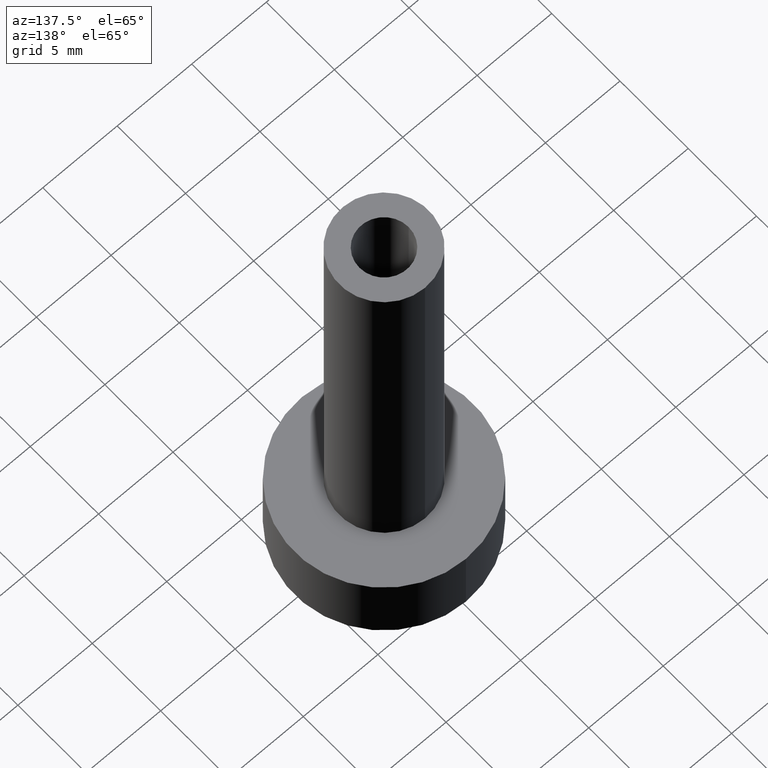
[diagram: clean part render]
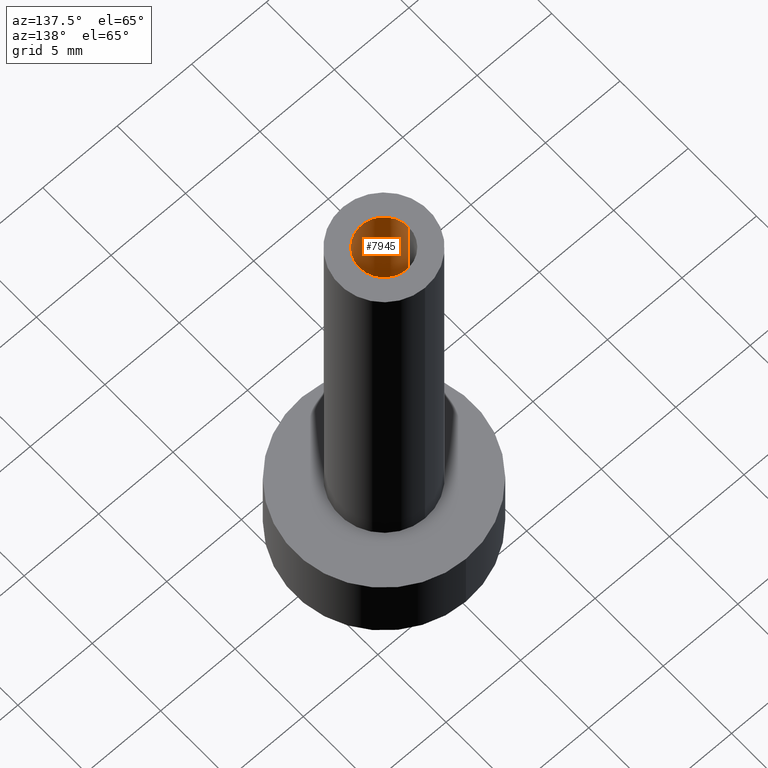
[diagram: same view with one face highlighted and labeled with its STEP entity id]
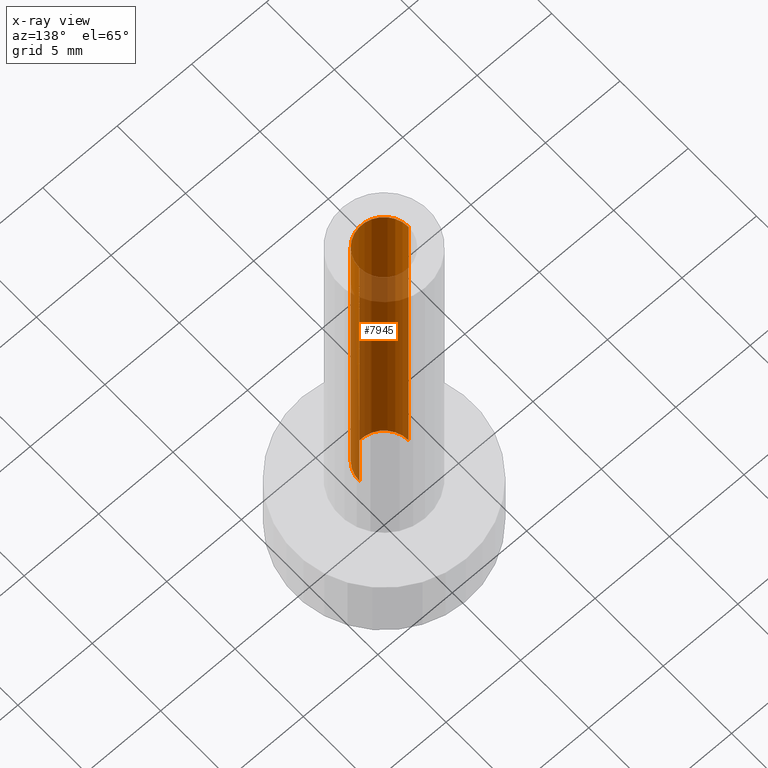
[diagram: x-ray of the same camera — body ghosted, the highlighted face saturated]
A machine part, auxiliary view. The second image highlights one B-rep face of the part: STEP entity #7945.
The next image is the same camera in x-ray: the body ghosted, the highlighted face saturated — about 72% of this face is hidden behind the body in this view.
In plain terms, the highlighted cylindrical surface (edge-blend (fillet) strip) has radius 1.65 mm, axis along (-0, -0, 1).
Its self-contained STEP definition (entity closure, byte-faithful):
#49 = CARTESIAN_POINT ( 'NONE',  ( 1.649999999999995200, -1.974194513242174800E-013, 25.57966008460881100 ) ) ;
#56 = EDGE_CURVE ( 'NONE', #11429, #7321, #3998, .T. ) ;
#87 = LINE ( 'NONE', #1256, #6739 ) ;
#108 = EDGE_CURVE ( 'NONE', #9196, #767, #5945, .T. ) ;
#112 = VERTEX_POINT ( 'NONE', #3204 ) ;
#140 = CARTESIAN_POINT ( 'NONE',  ( 1.649999999999995200, -0.006834618660870497000, 20.70278219267596100 ) ) ;
#180 = EDGE_CURVE ( 'NONE', #9532, #9961, #4290, .T. ) ;
#215 = VECTOR ( 'NONE', #11399, 1000.000000000000000 ) ;
#304 = ORIENTED_EDGE ( 'NONE', *, *, #7689, .F. ) ;
#306 = CARTESIAN_POINT ( 'NONE',  ( 1.649999999999996600, -0.01377649641827538600, 27.24789014515155500 ) ) ;
#324 = VERTEX_POINT ( 'NONE', #4541 ) ;
#327 = CARTESIAN_POINT ( 'NONE',  ( 1.649999999999995200, -1.795680202025962800E-013, 22.62096646133800300 ) ) ;
#351 = DIRECTION ( 'NONE',  ( -0.0000000000000000000, -0.0000000000000000000, 1.000000000000000000 ) ) ;
#372 = CARTESIAN_POINT ( 'NONE',  ( 1.649999999999995200, 5.268150651319691000E-012, 19.89648745500781900 ) ) ;
#375 = ORIENTED_EDGE ( 'NONE', *, *, #790, .F. ) ;
#393 = EDGE_CURVE ( 'NONE', #4023, #5433, #11601, .T. ) ;
#422 = DIRECTION ( 'NONE',  ( -0.0000000000000000000, -0.0000000000000000000, 1.000000000000000000 ) ) ;
#482 = B_SPLINE_CURVE_WITH_KNOTS ( 'NONE', 3,
 ( #8806, #6019, #6976, #1313 ),
 .UNSPECIFIED., .F., .F.,
 ( 4, 4 ),
 ( 0.0000000000000000000, 9.910549346511510500E-005 ),
 .UNSPECIFIED. ) ;
#520 = DIRECTION ( 'NONE',  ( -0.0000000000000000000, -0.0000000000000000000, 1.000000000000000000 ) ) ;
#531 = CARTESIAN_POINT ( 'NONE',  ( 1.649999999999995200, 5.268150651319691000E-012, 19.89648745500781900 ) ) ;
#555 = DIRECTION ( 'NONE',  ( -0.0000000000000000000, -0.0000000000000000000, 1.000000000000000000 ) ) ;
#626 = VERTEX_POINT ( 'NONE', #9906 ) ;
#727 = VERTEX_POINT ( 'NONE', #11142 ) ;
#760 = B_SPLINE_CURVE_WITH_KNOTS ( 'NONE', 3,
 ( #11669, #3125, #6983, #327 ),
 .UNSPECIFIED., .F., .F.,
 ( 4, 4 ),
 ( 0.0000000000000000000, 8.345817743807363300E-005 ),
 .UNSPECIFIED. ) ;
#767 = VERTEX_POINT ( 'NONE', #5905 ) ;
#790 = EDGE_CURVE ( 'NONE', #7985, #4956, #2448, .T. ) ;
#847 = CARTESIAN_POINT ( 'NONE',  ( 1.649999999999993700, -0.01337708434378576100, 25.54919319790538200 ) ) ;
#854 = LINE ( 'NONE', #11877, #5561 ) ;
#860 = CARTESIAN_POINT ( 'NONE',  ( 1.649999999999995200, -0.007168028882069886600, 19.75330108053930500 ) ) ;
#881 = LINE ( 'NONE', #8865, #6491 ) ;
#883 = LINE ( 'NONE', #8928, #2779 ) ;
#885 = CARTESIAN_POINT ( 'NONE',  ( 1.649999999999996600, -3.306546357697853300E-015, 32.00000000000000000 ) ) ;
#903 = CARTESIAN_POINT ( 'NONE',  ( 1.649972729147662000, -0.009509848553077097600, 19.78193476246715600 ) ) ;
#978 = ORIENTED_EDGE ( 'NONE', *, *, #7627, .F. ) ;
#1030 = LINE ( 'NONE', #9035, #10791 ) ;
#1036 = ORIENTED_EDGE ( 'NONE', *, *, #8727, .F. ) ;
#1155 = CARTESIAN_POINT ( 'NONE',  ( 1.649874471932466300, -0.02035256410257170500, 29.75620868389423600 ) ) ;
#1172 = VERTEX_POINT ( 'NONE', #7448 ) ;
#1206 = CARTESIAN_POINT ( 'NONE',  ( 1.649999999999995200, -7.162893381950415300E-015, 26.14346955128204900 ) ) ;
#1207 = VERTEX_POINT ( 'NONE', #8218 ) ;
#1219 = CARTESIAN_POINT ( 'NONE',  ( 1.649999999999995200, -9.166859087305226900E-015, 32.00000000000000000 ) ) ;
#1226 = EDGE_CURVE ( 'NONE', #3746, #12029, #9428, .T. ) ;
#1253 = LINE ( 'NONE', #7222, #11026 ) ;
#1256 = CARTESIAN_POINT ( 'NONE',  ( 1.649999999999995200, -9.166859087305125900E-015, 32.00000000000000000 ) ) ;
#1269 = VERTEX_POINT ( 'NONE', #885 ) ;
#1281 = CARTESIAN_POINT ( 'NONE',  ( 1.649968618878430800, -0.01017628205128855700, 20.75735426682692600 ) ) ;
#1307 = CARTESIAN_POINT ( 'NONE',  ( 1.649999999999995200, -2.020597095675133500E-015, 27.82876245943963400 ) ) ;
#1313 = CARTESIAN_POINT ( 'NONE',  ( 1.649999999999995200, -1.947197455630812100E-013, 29.24312162307036200 ) ) ;
#1335 = CARTESIAN_POINT ( 'NONE',  ( -1.649999999999996800, -3.104479635838540600E-015, 32.00000000000000000 ) ) ;
#1359 = ORIENTED_EDGE ( 'NONE', *, *, #4140, .F. ) ;
#1393 = VECTOR ( 'NONE', #4815, 1000.000000000000000 ) ;
#1394 = DIRECTION ( 'NONE',  ( -0.0000000000000000000, -0.0000000000000000000, 1.000000000000000000 ) ) ;
#1437 = CARTESIAN_POINT ( 'NONE',  ( 1.649881399317205700, -0.01979099774790418100, 27.89187417628213700 ) ) ;
#1469 = CARTESIAN_POINT ( 'NONE',  ( 1.649999999999995200, -6.953525881096183700E-015, 24.18962339743589900 ) ) ;
#1473 = CARTESIAN_POINT ( 'NONE',  ( 1.649874471932466300, -0.02035256410257140300, 27.31453700921474600 ) ) ;
#1509 = DIRECTION ( 'NONE',  ( -0.0000000000000000000, -0.0000000000000000000, 1.000000000000000000 ) ) ;
#1517 = VECTOR ( 'NONE', #422, 1000.000000000000000 ) ;
#1518 = CARTESIAN_POINT ( 'NONE',  ( 1.649999999999995200, -4.287045504290827600E-015, 29.04991630559348800 ) ) ;
#1519 = ORIENTED_EDGE ( 'NONE', *, *, #4967, .F. ) ;
#1525 = CARTESIAN_POINT ( 'NONE',  ( 1.649999999999995200, -0.01429263875368419800, 29.68102768341397300 ) ) ;
#1570 = ORIENTED_EDGE ( 'NONE', *, *, #8089, .F. ) ;
#1625 = ORIENTED_EDGE ( 'NONE', *, *, #9265, .F. ) ;
#1639 = DIRECTION ( 'NONE',  ( -0.0000000000000000000, -0.0000000000000000000, 1.000000000000000000 ) ) ;
#1642 = EDGE_CURVE ( 'NONE', #5367, #2298, #10292, .T. ) ;
#1651 = CARTESIAN_POINT ( 'NONE',  ( 1.649888061894949200, -0.01925089789177153500, 29.79444033379345000 ) ) ;
#1710 = CARTESIAN_POINT ( 'NONE',  ( 1.649999999999995200, -9.286497659221951400E-015, 20.24122596153846100 ) ) ;
#1729 = EDGE_CURVE ( 'NONE', #2207, #5078, #8895, .T. ) ;
#1730 = ORIENTED_EDGE ( 'NONE', *, *, #11137, .F. ) ;
#1733 = VECTOR ( 'NONE', #5971, 1000.000000000000000 ) ;
#1788 = CARTESIAN_POINT ( 'NONE',  ( 1.649999999999995200, -1.974194513242174800E-013, 25.57966008460881100 ) ) ;
#1823 = LINE ( 'NONE', #6649, #1393 ) ;
#1825 = B_SPLINE_CURVE_WITH_KNOTS ( 'NONE', 3,
 ( #10725, #306, #2142, #10442 ),
 .UNSPECIFIED., .F., .F.,
 ( 4, 4 ),
 ( 0.0004585329357487526700, 0.0005566951640795408200 ),
 .UNSPECIFIED. ) ;
#1850 = CARTESIAN_POINT ( 'NONE',  ( 1.649999999999995200, -6.563454287242769200E-015, 20.99427083333333500 ) ) ;
#1868 = EDGE_CURVE ( 'NONE', #5877, #8810, #12013, .T. ) ;
#1881 = VECTOR ( 'NONE', #10597, 1000.000000000000000 ) ;
#1889 = LINE ( 'NONE', #2677, #3689 ) ;
#1910 = CARTESIAN_POINT ( 'NONE',  ( 1.649968618878430800, -0.01017628205128844200, 19.81048302283653900 ) ) ;
#1955 = CARTESIAN_POINT ( 'NONE',  ( 1.649999999999996600, -0.01377649641826680600, 29.07962091438233200 ) ) ;
#1987 = VERTEX_POINT ( 'NONE', #7076 ) ;
#1998 = LINE ( 'NONE', #5295, #11764 ) ;
#1999 = CARTESIAN_POINT ( 'NONE',  ( 1.649968618878430800, -0.01017628205128877400, 22.53820362580128000 ) ) ;
#2016 = ORIENTED_EDGE ( 'NONE', *, *, #180, .F. ) ;
#2022 = VECTOR ( 'NONE', #7216, 1000.000000000000000 ) ;
#2058 = VERTEX_POINT ( 'NONE', #1850 ) ;
#2104 = LINE ( 'NONE', #5978, #9992 ) ;
#2142 = CARTESIAN_POINT ( 'NONE',  ( 1.649881399317200800, -0.01979099774790403500, 27.28129725320521700 ) ) ;
#2150 = VERTEX_POINT ( 'NONE', #9651 ) ;
#2164 = VECTOR ( 'NONE', #1509, 1000.000000000000000 ) ;
#2170 = LINE ( 'NONE', #10630, #1881 ) ;
#2171 = ORIENTED_EDGE ( 'NONE', *, *, #3329, .F. ) ;
#2180 = CARTESIAN_POINT ( 'NONE',  ( 1.649999999999995200, -6.423875953339947600E-015, 20.31245993589743300 ) ) ;
#2196 = CARTESIAN_POINT ( 'NONE',  ( 1.649999999999995200, -3.818212767985572400E-015, 28.42502248511685900 ) ) ;
#2207 = VERTEX_POINT ( 'NONE', #4769 ) ;
#2217 = VERTEX_POINT ( 'NONE', #7955 ) ;
#2232 = CIRCLE ( 'NONE', #5386, 1.649999999999996600 ) ;
#2296 = CARTESIAN_POINT ( 'NONE',  ( 1.649968618878430800, -0.01017628205128844200, 19.81048302283653900 ) ) ;
#2298 = VERTEX_POINT ( 'NONE', #6834 ) ;
#2328 = EDGE_CURVE ( 'NONE', #4375, #1269, #2232, .T. ) ;
#2330 = CARTESIAN_POINT ( 'NONE',  ( 1.649999999999995200, -1.956188710365916500E-013, 28.02196777691651200 ) ) ;
#2340 = CARTESIAN_POINT ( 'NONE',  ( 1.649999999999995200, -6.853827071165598900E-015, 23.44675480769230800 ) ) ;
#2361 = EDGE_CURVE ( 'NONE', #4635, #5367, #5670, .T. ) ;
#2370 = VECTOR ( 'NONE', #3993, 1000.000000000000000 ) ;
#2401 = CARTESIAN_POINT ( 'NONE',  ( 1.649999999999995200, -3.306546357697853300E-015, 32.00000000000000000 ) ) ;
#2448 = LINE ( 'NONE', #9759, #9388 ) ;
#2460 = EDGE_CURVE ( 'NONE', #2058, #1207, #2170, .T. ) ;
#2493 = LINE ( 'NONE', #4117, #2764 ) ;
#2517 = CARTESIAN_POINT ( 'NONE',  ( 1.649999999999993900, -3.460658985125850800E-015, 29.64617633127070900 ) ) ;
#2587 = CARTESIAN_POINT ( 'NONE',  ( 1.649999999999995200, -3.306546357697853300E-015, 32.00000000000000000 ) ) ;
#2636 = ORIENTED_EDGE ( 'NONE', *, *, #2328, .T. ) ;
#2677 = CARTESIAN_POINT ( 'NONE',  ( 1.649999999999995200, -3.306546357697853300E-015, 32.00000000000000000 ) ) ;
#2682 = EDGE_CURVE ( 'NONE', #9209, #10911, #4205, .T. ) ;
#2721 = EDGE_CURVE ( 'NONE', #1987, #4023, #1823, .T. ) ;
#2741 = ORIENTED_EDGE ( 'NONE', *, *, #3144, .F. ) ;
#2764 = VECTOR ( 'NONE', #10746, 1000.000000000000000 ) ;
#2779 = VECTOR ( 'NONE', #520, 1000.000000000000000 ) ;
#2783 = ORIENTED_EDGE ( 'NONE', *, *, #10431, .F. ) ;
#2991 = EDGE_CURVE ( 'NONE', #5078, #6320, #11882, .T. ) ;
#3020 = CARTESIAN_POINT ( 'NONE',  ( 1.649999999999995200, -9.438538344365947600E-015, 19.03024839743589800 ) ) ;
#3061 = CARTESIAN_POINT ( 'NONE',  ( 1.649880474257335600, -0.01986598744696083100, 27.34796265203396000 ) ) ;
#3087 = ORIENTED_EDGE ( 'NONE', *, *, #8574, .F. ) ;
#3125 = CARTESIAN_POINT ( 'NONE',  ( 1.649972627052297900, -0.009526402157410483700, 22.56609377124715400 ) ) ;
#3144 = EDGE_CURVE ( 'NONE', #4663, #1172, #8747, .T. ) ;
#3146 = CARTESIAN_POINT ( 'NONE',  ( 1.649999999999995200, -6.740419674869557200E-015, 22.09330929487179100 ) ) ;
#3160 = CARTESIAN_POINT ( 'NONE',  ( 1.649999999999995200, -3.306546357697853300E-015, 32.00000000000000000 ) ) ;
#3190 = EDGE_CURVE ( 'NONE', #9961, #12100, #5520, .T. ) ;
#3204 = CARTESIAN_POINT ( 'NONE',  ( 1.649999999999995200, -6.643213335187236400E-015, 21.69643429487179300 ) ) ;
#3267 = CARTESIAN_POINT ( 'NONE',  ( 1.649968618878430800, -0.01017628205128844200, 19.81048302283653900 ) ) ;
#3276 = CARTESIAN_POINT ( 'NONE',  ( 1.649999999999996600, -1.803920773811563600E-013, 20.84011710236364200 ) ) ;
#3329 = EDGE_CURVE ( 'NONE', #5163, #11417, #11147, .T. ) ;
#3347 = DIRECTION ( 'NONE',  ( -0.0000000000000000000, -0.0000000000000000000, 1.000000000000000000 ) ) ;
#3351 = CARTESIAN_POINT ( 'NONE',  ( 1.649874471932466300, -0.02035256410257155200, 28.53505483774038300 ) ) ;
#3383 = CARTESIAN_POINT ( 'NONE',  ( 1.649999999999995200, -7.013345167054537300E-015, 24.92231570512820600 ) ) ;
#3396 = LINE ( 'NONE', #10961, #8102 ) ;
#3439 = VERTEX_POINT ( 'NONE', #12000 ) ;
#3519 = CARTESIAN_POINT ( 'NONE',  ( 1.649885263884359300, -0.01947771777650582000, 29.71850350367906300 ) ) ;
#3537 = CARTESIAN_POINT ( 'NONE',  ( 1.649999999999993700, -3.306546357697853300E-015, 6.999999999999999100 ) ) ;
#3545 = DIRECTION ( 'NONE',  ( -0.0000000000000000000, -0.0000000000000000000, 1.000000000000000000 ) ) ;
#3550 = CARTESIAN_POINT ( 'NONE',  ( 1.649999999999995200, -8.866516422389248500E-015, 32.00000000000000000 ) ) ;
#3552 = CARTESIAN_POINT ( 'NONE',  ( 1.649881399317195700, -0.01979099774790379600, 25.44956648397444400 ) ) ;
#3606 = B_SPLINE_CURVE_WITH_KNOTS ( 'NONE', 3,
 ( #4562, #6505, #847, #1788 ),
 .UNSPECIFIED., .F., .F.,
 ( 4, 4 ),
 ( 0.0000000000000000000, 9.910549346510903300E-005 ),
 .UNSPECIFIED. ) ;
#3649 = CARTESIAN_POINT ( 'NONE',  ( 1.649999999999996600, -3.542291785417484000E-015, 22.45752495321338000 ) ) ;
#3686 = CARTESIAN_POINT ( 'NONE',  ( 0.0000000000000000000, -3.306546357697853300E-015, 32.00000000000000000 ) ) ;
#3689 = VECTOR ( 'NONE', #9286, 1000.000000000000000 ) ;
#3691 = VECTOR ( 'NONE', #11402, 1000.000000000000000 ) ;
#3708 = ORIENTED_EDGE ( 'NONE', *, *, #8286, .F. ) ;
#3746 = VERTEX_POINT ( 'NONE', #6599 ) ;
#3755 = ORIENTED_EDGE ( 'NONE', *, *, #5936, .F. ) ;
#3784 = CARTESIAN_POINT ( 'NONE',  ( 1.649999999999995200, -9.166859087305125900E-015, 21.22832532051281600 ) ) ;
#3793 = CARTESIAN_POINT ( 'NONE',  ( 1.649999999999996600, -3.542291785417484000E-015, 22.45752495321338000 ) ) ;
#3831 = CARTESIAN_POINT ( 'NONE',  ( 1.649999999999993900, -0.006834618660871230800, 22.48363155165030800 ) ) ;
#3859 = CARTESIAN_POINT ( 'NONE',  ( 1.649881399317200800, -0.01979099774790395500, 29.11302802243599100 ) ) ;
#3863 = EDGE_CURVE ( 'NONE', #2298, #3953, #9504, .T. ) ;
#3906 = ORIENTED_EDGE ( 'NONE', *, *, #1868, .F. ) ;
#3922 = ORIENTED_EDGE ( 'NONE', *, *, #4465, .F. ) ;
#3953 = VERTEX_POINT ( 'NONE', #2340 ) ;
#3959 = ORIENTED_EDGE ( 'NONE', *, *, #7267, .F. ) ;
#3993 = DIRECTION ( 'NONE',  ( -0.0000000000000000000, -0.0000000000000000000, 1.000000000000000000 ) ) ;
#3998 = LINE ( 'NONE', #8592, #2370 ) ;
#4008 = ORIENTED_EDGE ( 'NONE', *, *, #9115, .F. ) ;
#4023 = VERTEX_POINT ( 'NONE', #1518 ) ;
#4049 = VECTOR ( 'NONE', #5823, 1000.000000000000000 ) ;
#4093 = CARTESIAN_POINT ( 'NONE',  ( 1.649999999999995200, -3.306546357697853300E-015, 32.00000000000000000 ) ) ;
#4117 = CARTESIAN_POINT ( 'NONE',  ( 1.649999999999995200, -3.306546357697853300E-015, 32.00000000000000000 ) ) ;
#4140 = EDGE_CURVE ( 'NONE', #11423, #5877, #8673, .T. ) ;
#4174 = ORIENTED_EDGE ( 'NONE', *, *, #393, .F. ) ;
#4205 = LINE ( 'NONE', #10350, #9236 ) ;
#4223 = EDGE_CURVE ( 'NONE', #12100, #2207, #1889, .T. ) ;
#4272 = EDGE_CURVE ( 'NONE', #4956, #4663, #6916, .T. ) ;
#4290 = LINE ( 'NONE', #3160, #5590 ) ;
#4303 = CARTESIAN_POINT ( 'NONE',  ( 1.649999999999995200, -5.194270730359386600E-015, 28.64682120887044900 ) ) ;
#4340 = B_SPLINE_CURVE_WITH_KNOTS ( 'NONE', 3,
 ( #8719, #7737, #8675, #9645 ),
 .UNSPECIFIED., .F., .F.,
 ( 4, 4 ),
 ( 0.0000000000000000000, 9.910549346511258400E-005 ),
 .UNSPECIFIED. ) ;
#4375 = VERTEX_POINT ( 'NONE', #1335 ) ;
#4439 = EDGE_CURVE ( 'NONE', #727, #3746, #760, .T. ) ;
#4465 = EDGE_CURVE ( 'NONE', #1172, #8499, #881, .T. ) ;
#4486 = ORIENTED_EDGE ( 'NONE', *, *, #5600, .F. ) ;
#4541 = CARTESIAN_POINT ( 'NONE',  ( 1.649874471932466300, -0.02035256410257155200, 28.53505483774038300 ) ) ;
#4562 = CARTESIAN_POINT ( 'NONE',  ( 1.649874471932466300, -0.02035256410257118100, 25.48280623998397200 ) ) ;
#4590 = VERTEX_POINT ( 'NONE', #2196 ) ;
#4635 = VERTEX_POINT ( 'NONE', #7258 ) ;
#4644 = EDGE_CURVE ( 'NONE', #8001, #9532, #10199, .T. ) ;
#4663 = VERTEX_POINT ( 'NONE', #1469 ) ;
#4682 = LINE ( 'NONE', #2401, #11060 ) ;
#4687 = VECTOR ( 'NONE', #12193, 1000.000000000000000 ) ;
#4769 = CARTESIAN_POINT ( 'NONE',  ( 1.649999999999995200, -4.207742044604143700E-015, 19.72572928078200500 ) ) ;
#4779 = ORIENTED_EDGE ( 'NONE', *, *, #1642, .F. ) ;
#4815 = DIRECTION ( 'NONE',  ( -0.0000000000000000000, -0.0000000000000000000, 1.000000000000000000 ) ) ;
#4891 = VERTEX_POINT ( 'NONE', #10669 ) ;
#4903 = AXIS2_PLACEMENT_3D ( 'NONE', #9193, #3545, #5378 ) ;
#4925 = ORIENTED_EDGE ( 'NONE', *, *, #10223, .F. ) ;
#4956 = VERTEX_POINT ( 'NONE', #7142 ) ;
#4957 = ORIENTED_EDGE ( 'NONE', *, *, #3190, .F. ) ;
#4965 = CARTESIAN_POINT ( 'NONE',  ( 1.649999999999995200, -3.765273208782178600E-015, 20.67667559423902500 ) ) ;
#4967 = EDGE_CURVE ( 'NONE', #6320, #9302, #6762, .T. ) ;
#4968 = VERTEX_POINT ( 'NONE', #1473 ) ;
#5078 = VERTEX_POINT ( 'NONE', #2296 ) ;
#5117 = ORIENTED_EDGE ( 'NONE', *, *, #4644, .F. ) ;
#5144 = CARTESIAN_POINT ( 'NONE',  ( 1.649999999999995200, -3.306546357697853300E-015, 32.00000000000000000 ) ) ;
#5157 = CARTESIAN_POINT ( 'NONE',  ( 1.649999999999995200, -6.781545433965924000E-015, 22.77512019230768900 ) ) ;
#5163 = VERTEX_POINT ( 'NONE', #8754 ) ;
#5295 = CARTESIAN_POINT ( 'NONE',  ( 1.649999999999995200, -9.166859087305129100E-015, 32.00000000000000000 ) ) ;
#5296 = CARTESIAN_POINT ( 'NONE',  ( 1.649999999999995200, -1.947197455630812100E-013, 29.24312162307036200 ) ) ;
#5299 = CARTESIAN_POINT ( 'NONE',  ( 1.649999999999995200, -1.338841452253828500E-015, 25.38645476713193700 ) ) ;
#5301 = CARTESIAN_POINT ( 'NONE',  ( 1.649999999999995200, -8.948767940581975900E-015, 32.00000000000000000 ) ) ;
#5313 = ORIENTED_EDGE ( 'NONE', *, *, #3863, .F. ) ;
#5319 = ORIENTED_EDGE ( 'NONE', *, *, #12147, .F. ) ;
#5343 = CARTESIAN_POINT ( 'NONE',  ( 1.649999999999996600, -0.01377649641827423200, 25.41615937592077800 ) ) ;
#5367 = VERTEX_POINT ( 'NONE', #6742 ) ;
#5378 = DIRECTION ( 'NONE',  ( 1.000000000000000000, 0.0000000000000000000, 0.0000000000000000000 ) ) ;
#5386 = AXIS2_PLACEMENT_3D ( 'NONE', #9074, #3347, #6264 ) ;
#5388 = CARTESIAN_POINT ( 'NONE',  ( 1.649874471932466300, -0.02035256410257118100, 25.48280623998397200 ) ) ;
#5405 = AXIS2_PLACEMENT_3D ( 'NONE', #3686, #5409, #5801 ) ;
#5409 = DIRECTION ( 'NONE',  ( -0.0000000000000000000, -0.0000000000000000000, 1.000000000000000000 ) ) ;
#5429 = LINE ( 'NONE', #11136, #11952 ) ;
#5431 = CARTESIAN_POINT ( 'NONE',  ( 1.649999999999995200, -3.818212767985572400E-015, 28.42502248511685900 ) ) ;
#5433 = VERTEX_POINT ( 'NONE', #9213 ) ;
#5467 = ORIENTED_EDGE ( 'NONE', *, *, #8514, .F. ) ;
#5506 = CARTESIAN_POINT ( 'NONE',  ( 1.649874471932466300, -0.02035256410257140300, 27.31453700921474600 ) ) ;
#5520 = LINE ( 'NONE', #6593, #6839 ) ;
#5527 = ORIENTED_EDGE ( 'NONE', *, *, #9977, .F. ) ;
#5529 = ORIENTED_EDGE ( 'NONE', *, *, #10117, .F. ) ;
#5561 = VECTOR ( 'NONE', #555, 1000.000000000000000 ) ;
#5571 = DIRECTION ( 'NONE',  ( -0.0000000000000000000, -0.0000000000000000000, 1.000000000000000000 ) ) ;
#5590 = VECTOR ( 'NONE', #10745, 1000.000000000000000 ) ;
#5600 = EDGE_CURVE ( 'NONE', #6664, #626, #7931, .T. ) ;
#5602 = B_SPLINE_CURVE_WITH_KNOTS ( 'NONE', 3,
 ( #3351, #7143, #7236, #4303 ),
 .UNSPECIFIED., .F., .F.,
 ( 4, 4 ),
 ( 0.0000000000000000000, 0.0001136294371126921200 ),
 .UNSPECIFIED. ) ;
#5628 = DIRECTION ( 'NONE',  ( -0.0000000000000000000, -0.0000000000000000000, 1.000000000000000000 ) ) ;
#5670 = LINE ( 'NONE', #5144, #9198 ) ;
#5674 = EDGE_CURVE ( 'NONE', #9302, #12060, #5429, .T. ) ;
#5703 = CARTESIAN_POINT ( 'NONE',  ( 1.649999999999992400, -0.01337708434378453100, 27.38092396713614800 ) ) ;
#5801 = DIRECTION ( 'NONE',  ( 1.000000000000000000, 0.0000000000000000000, 0.0000000000000000000 ) ) ;
#5823 = DIRECTION ( 'NONE',  ( -0.0000000000000000000, -0.0000000000000000000, 1.000000000000000000 ) ) ;
#5862 = DIRECTION ( 'NONE',  ( -0.0000000000000000000, -0.0000000000000000000, 1.000000000000000000 ) ) ;
#5877 = VERTEX_POINT ( 'NONE', #8391 ) ;
#5905 = CARTESIAN_POINT ( 'NONE',  ( 1.649874471932466300, -0.02035256410257147900, 27.92511393229166900 ) ) ;
#5936 = EDGE_CURVE ( 'NONE', #12060, #2217, #2493, .T. ) ;
#5945 = B_SPLINE_CURVE_WITH_KNOTS ( 'NONE', 3,
 ( #1307, #8854, #1437, #5969 ),
 .UNSPECIFIED., .F., .F.,
 ( 4, 4 ),
 ( 0.0004585329357486866500, 0.0005566951640794493100 ),
 .UNSPECIFIED. ) ;
#5969 = CARTESIAN_POINT ( 'NONE',  ( 1.649874471932466300, -0.02035256410257147900, 27.92511393229166900 ) ) ;
#5971 = DIRECTION ( 'NONE',  ( -0.0000000000000000000, -0.0000000000000000000, 1.000000000000000000 ) ) ;
#5978 = CARTESIAN_POINT ( 'NONE',  ( 1.649999999999995200, -3.306546357697853300E-015, 32.00000000000000000 ) ) ;
#5980 = VERTEX_POINT ( 'NONE', #11608 ) ;
#5991 = EDGE_CURVE ( 'NONE', #11417, #112, #8803, .T. ) ;
#6019 = CARTESIAN_POINT ( 'NONE',  ( 1.649880474257335600, -0.01986598744696129600, 29.17969342126473400 ) ) ;
#6022 = CARTESIAN_POINT ( 'NONE',  ( 1.649972247349454000, -0.009587966663349184500, 19.83959172682982700 ) ) ;
#6067 = CARTESIAN_POINT ( 'NONE',  ( -1.649999999999993700, -3.104479635838540600E-015, 6.999999999999999100 ) ) ;
#6083 = CARTESIAN_POINT ( 'NONE',  ( 1.649999999999995200, -1.338841452253828500E-015, 25.38645476713193700 ) ) ;
#6087 = CARTESIAN_POINT ( 'NONE',  ( 1.649999999999995200, -3.306546357697853300E-015, 32.00000000000000000 ) ) ;
#6114 = EDGE_CURVE ( 'NONE', #4891, #2150, #10193, .T. ) ;
#6165 = LINE ( 'NONE', #11175, #7506 ) ;
#6190 = VECTOR ( 'NONE', #10127, 1000.000000000000000 ) ;
#6196 = ORIENTED_EDGE ( 'NONE', *, *, #108, .F. ) ;
#6219 = EDGE_CURVE ( 'NONE', #11623, #4590, #4682, .T. ) ;
#6255 = CARTESIAN_POINT ( 'NONE',  ( 1.649999999999995200, -2.020597095675133500E-015, 27.82876245943963400 ) ) ;
#6264 = DIRECTION ( 'NONE',  ( 1.000000000000000000, 0.0000000000000000000, 0.0000000000000000000 ) ) ;
#6320 = VERTEX_POINT ( 'NONE', #531 ) ;
#6323 = VERTEX_POINT ( 'NONE', #10771 ) ;
#6325 = DIRECTION ( 'NONE',  ( -0.0000000000000000000, -0.0000000000000000000, 1.000000000000000000 ) ) ;
#6403 = EDGE_CURVE ( 'NONE', #1207, #11244, #854, .T. ) ;
#6432 = VECTOR ( 'NONE', #7264, 1000.000000000000000 ) ;
#6491 = VECTOR ( 'NONE', #7835, 1000.000000000000000 ) ;
#6505 = CARTESIAN_POINT ( 'NONE',  ( 1.649880474257335600, -0.01986598744696091100, 25.51623188280319000 ) ) ;
#6593 = CARTESIAN_POINT ( 'NONE',  ( 1.649999999999995200, -9.438538344365947600E-015, 32.00000000000000000 ) ) ;
#6599 = CARTESIAN_POINT ( 'NONE',  ( 1.649999999999995200, -1.795680202025962800E-013, 22.62096646133800300 ) ) ;
#6623 = CARTESIAN_POINT ( 'NONE',  ( 1.649999999999995200, -4.207742044604143700E-015, 19.72572928078200500 ) ) ;
#6649 = CARTESIAN_POINT ( 'NONE',  ( 1.649999999999995200, -3.306546357697853300E-015, 32.00000000000000000 ) ) ;
#6664 = VERTEX_POINT ( 'NONE', #9587 ) ;
#6712 = CARTESIAN_POINT ( 'NONE',  ( 1.649999999999995200, -7.145446090212562600E-015, 26.07223557692307400 ) ) ;
#6739 = VECTOR ( 'NONE', #351, 1000.000000000000000 ) ;
#6742 = CARTESIAN_POINT ( 'NONE',  ( 1.649999999999995200, -8.948767940581975900E-015, 23.00917467948718100 ) ) ;
#6746 = B_SPLINE_CURVE_WITH_KNOTS ( 'NONE', 3,
 ( #5431, #9025, #11063, #12012 ),
 .UNSPECIFIED., .F., .F.,
 ( 4, 4 ),
 ( 0.0002745689995831661200, 0.0003856768303490199600 ),
 .UNSPECIFIED. ) ;
#6762 = LINE ( 'NONE', #7127, #2022 ) ;
#6834 = CARTESIAN_POINT ( 'NONE',  ( 1.649999999999995200, -6.764098142228071300E-015, 23.08040865384615600 ) ) ;
#6836 = EDGE_CURVE ( 'NONE', #8718, #8130, #6165, .T. ) ;
#6839 = VECTOR ( 'NONE', #5628, 1000.000000000000000 ) ;
#6841 = DIRECTION ( 'NONE',  ( -0.0000000000000000000, -0.0000000000000000000, 1.000000000000000000 ) ) ;
#6916 = LINE ( 'NONE', #12208, #12115 ) ;
#6937 = EDGE_CURVE ( 'NONE', #8545, #8718, #3606, .T. ) ;
#6939 = VECTOR ( 'NONE', #11891, 1000.000000000000000 ) ;
#6976 = CARTESIAN_POINT ( 'NONE',  ( 1.649999999999993700, -0.01337708434378298900, 29.21265473636692500 ) ) ;
#6983 = CARTESIAN_POINT ( 'NONE',  ( 1.649999999999994600, -0.006930891507242524700, 22.59404824357147100 ) ) ;
#7008 = VECTOR ( 'NONE', #12106, 1000.000000000000000 ) ;
#7058 = DIRECTION ( 'NONE',  ( -0.0000000000000000000, -0.0000000000000000000, 1.000000000000000000 ) ) ;
#7076 = CARTESIAN_POINT ( 'NONE',  ( 1.649999999999995200, -5.194270730359386600E-015, 28.64682120887044900 ) ) ;
#7127 = CARTESIAN_POINT ( 'NONE',  ( 1.649999999999995200, -3.306546357697853300E-015, 32.00000000000000000 ) ) ;
#7142 = CARTESIAN_POINT ( 'NONE',  ( 1.649999999999995200, -6.936078589358332600E-015, 24.11838942307692300 ) ) ;
#7143 = CARTESIAN_POINT ( 'NONE',  ( 1.649888061894949200, -0.01925089789177133300, 28.57328648763959600 ) ) ;
#7176 = ORIENTED_EDGE ( 'NONE', *, *, #6219, .F. ) ;
#7198 = CARTESIAN_POINT ( 'NONE',  ( 1.649999999999995200, -6.279312678940598600E-015, 19.10148237179487300 ) ) ;
#7216 = DIRECTION ( 'NONE',  ( -0.0000000000000000000, -0.0000000000000000000, 1.000000000000000000 ) ) ;
#7222 = CARTESIAN_POINT ( 'NONE',  ( 1.649999999999995200, -8.948767940582072100E-015, 32.00000000000000000 ) ) ;
#7228 = CARTESIAN_POINT ( 'NONE',  ( 1.649999999999995200, -2.271001210707186000E-015, 27.21818553636271100 ) ) ;
#7236 = CARTESIAN_POINT ( 'NONE',  ( 1.649999999999995200, -0.01411605110131184500, 28.61116797312272600 ) ) ;
#7258 = CARTESIAN_POINT ( 'NONE',  ( 1.649999999999995200, -6.798992725703777500E-015, 22.84635416666666400 ) ) ;
#7262 = DIRECTION ( 'NONE',  ( -0.0000000000000000000, -0.0000000000000000000, 1.000000000000000000 ) ) ;
#7264 = DIRECTION ( 'NONE',  ( -0.0000000000000000000, -0.0000000000000000000, 1.000000000000000000 ) ) ;
#7267 = EDGE_CURVE ( 'NONE', #324, #1987, #5602, .T. ) ;
#7271 = ORIENTED_EDGE ( 'NONE', *, *, #8239, .F. ) ;
#7321 = VERTEX_POINT ( 'NONE', #3649 ) ;
#7329 = CARTESIAN_POINT ( 'NONE',  ( 1.649874471932466300, -0.02035256410257170500, 29.75620868389423600 ) ) ;
#7337 = DIRECTION ( 'NONE',  ( -0.0000000000000000000, -0.0000000000000000000, 1.000000000000000000 ) ) ;
#7344 = LINE ( 'NONE', #8556, #215 ) ;
#7373 = ORIENTED_EDGE ( 'NONE', *, *, #6937, .F. ) ;
#7448 = CARTESIAN_POINT ( 'NONE',  ( 1.649999999999995200, -6.995897875316684600E-015, 24.85108173076923100 ) ) ;
#7506 = VECTOR ( 'NONE', #5571, 1000.000000000000000 ) ;
#7509 = DIRECTION ( 'NONE',  ( -0.0000000000000000000, -0.0000000000000000000, 1.000000000000000000 ) ) ;
#7539 = DIRECTION ( 'NONE',  ( -0.0000000000000000000, -0.0000000000000000000, 1.000000000000000000 ) ) ;
#7540 = LINE ( 'NONE', #9113, #6939 ) ;
#7551 = ORIENTED_EDGE ( 'NONE', *, *, #8049, .F. ) ;
#7595 = VECTOR ( 'NONE', #11933, 1000.000000000000000 ) ;
#7623 = FACE_OUTER_BOUND ( 'NONE', #10960, .T. ) ;
#7627 = EDGE_CURVE ( 'NONE', #5980, #11429, #1998, .T. ) ;
#7689 = EDGE_CURVE ( 'NONE', #112, #5980, #10313, .T. ) ;
#7693 = CARTESIAN_POINT ( 'NONE',  ( 1.649968618878430800, -0.01017628205128855700, 20.75735426682692600 ) ) ;
#7737 = CARTESIAN_POINT ( 'NONE',  ( 1.649880474257335600, -0.01986598744696089400, 27.95853957511088300 ) ) ;
#7799 = DIRECTION ( 'NONE',  ( -0.0000000000000000000, -0.0000000000000000000, 1.000000000000000000 ) ) ;
#7835 = DIRECTION ( 'NONE',  ( -0.0000000000000000000, -0.0000000000000000000, 1.000000000000000000 ) ) ;
#7840 = ORIENTED_EDGE ( 'NONE', *, *, #12132, .F. ) ;
#7881 = LINE ( 'NONE', #9598, #4049 ) ;
#7884 = CARTESIAN_POINT ( 'NONE',  ( 1.649972627052297900, -0.009526402157410105600, 20.78524441227280000 ) ) ;
#7931 = LINE ( 'NONE', #6087, #2164 ) ;
#7945 = ADVANCED_FACE ( 'NONE', ( #7623 ), #8342, .F. ) ;
#7955 = CARTESIAN_POINT ( 'NONE',  ( 1.649999999999995200, -3.765273208782178600E-015, 20.67667559423902500 ) ) ;
#7985 = VERTEX_POINT ( 'NONE', #9836 ) ;
#8001 = VERTEX_POINT ( 'NONE', #6067 ) ;
#8049 = EDGE_CURVE ( 'NONE', #5433, #9209, #482, .T. ) ;
#8089 = EDGE_CURVE ( 'NONE', #4968, #3439, #10550, .T. ) ;
#8102 = VECTOR ( 'NONE', #6325, 1000.000000000000000 ) ;
#8130 = VERTEX_POINT ( 'NONE', #6712 ) ;
#8178 = EDGE_CURVE ( 'NONE', #3439, #9196, #7344, .T. ) ;
#8218 = CARTESIAN_POINT ( 'NONE',  ( 1.649999999999995200, -6.580901578980621900E-015, 21.06550480769231000 ) ) ;
#8239 = EDGE_CURVE ( 'NONE', #2217, #4891, #9629, .T. ) ;
#8251 = CARTESIAN_POINT ( 'NONE',  ( 1.649999999999995200, -0.01411605110131212600, 29.83232181927657900 ) ) ;
#8286 = EDGE_CURVE ( 'NONE', #767, #11623, #4340, .T. ) ;
#8290 = CARTESIAN_POINT ( 'NONE',  ( 1.649999999999993900, -4.147443886671478200E-015, 29.86797505502429600 ) ) ;
#8298 = ORIENTED_EDGE ( 'NONE', *, *, #1729, .F. ) ;
#8342 = CYLINDRICAL_SURFACE ( 'NONE', #5405, 1.649999999999995200 ) ;
#8358 = CARTESIAN_POINT ( 'NONE',  ( 1.649999999999995200, -3.306546357697853300E-015, 32.00000000000000000 ) ) ;
#8391 = CARTESIAN_POINT ( 'NONE',  ( 1.649999999999995200, -7.220220197660501600E-015, 26.68281249999999700 ) ) ;
#8499 = VERTEX_POINT ( 'NONE', #3383 ) ;
#8514 = EDGE_CURVE ( 'NONE', #9453, #8545, #10035, .T. ) ;
#8545 = VERTEX_POINT ( 'NONE', #5388 ) ;
#8547 = EDGE_CURVE ( 'NONE', #4590, #324, #6746, .T. ) ;
#8556 = CARTESIAN_POINT ( 'NONE',  ( 1.649999999999995200, -3.306546357697853300E-015, 32.00000000000000000 ) ) ;
#8574 = EDGE_CURVE ( 'NONE', #3953, #6664, #1253, .T. ) ;
#8584 = VECTOR ( 'NONE', #1639, 1000.000000000000000 ) ;
#8592 = CARTESIAN_POINT ( 'NONE',  ( 1.649999999999995200, -3.306546357697853300E-015, 32.00000000000000000 ) ) ;
#8603 = ORIENTED_EDGE ( 'NONE', *, *, #4272, .F. ) ;
#8673 = LINE ( 'NONE', #12061, #6190 ) ;
#8675 = CARTESIAN_POINT ( 'NONE',  ( 1.649999999999993700, -0.01337708434378482100, 27.99150089021307200 ) ) ;
#8697 = CARTESIAN_POINT ( 'NONE',  ( 1.649999999999994600, -0.006930891507240412700, 20.81319888459711700 ) ) ;
#8718 = VERTEX_POINT ( 'NONE', #49 ) ;
#8719 = CARTESIAN_POINT ( 'NONE',  ( 1.649874471932466300, -0.02035256410257147900, 27.92511393229166900 ) ) ;
#8727 = EDGE_CURVE ( 'NONE', #10424, #4968, #1825, .T. ) ;
#8742 = ORIENTED_EDGE ( 'NONE', *, *, #5991, .F. ) ;
#8747 = LINE ( 'NONE', #8358, #7008 ) ;
#8754 = CARTESIAN_POINT ( 'NONE',  ( 1.649999999999995200, -6.546006995504915000E-015, 21.29955929487179100 ) ) ;
#8803 = LINE ( 'NONE', #1219, #1733 ) ;
#8806 = CARTESIAN_POINT ( 'NONE',  ( 1.649874471932466300, -0.02035256410257162800, 29.14626777844552000 ) ) ;
#8810 = VERTEX_POINT ( 'NONE', #10847 ) ;
#8840 = ORIENTED_EDGE ( 'NONE', *, *, #9805, .F. ) ;
#8854 = CARTESIAN_POINT ( 'NONE',  ( 1.649999999999996600, -0.01377649641825942800, 27.85846706822848200 ) ) ;
#8865 = CARTESIAN_POINT ( 'NONE',  ( 1.649999999999995200, -8.746877850472542900E-015, 32.00000000000000000 ) ) ;
#8895 = B_SPLINE_CURVE_WITH_KNOTS ( 'NONE', 3,
 ( #6623, #860, #903, #1910 ),
 .UNSPECIFIED., .F., .F.,
 ( 4, 4 ),
 ( 0.0003803933110087695500, 0.0004650327836028309400 ),
 .UNSPECIFIED. ) ;
#8928 = CARTESIAN_POINT ( 'NONE',  ( -1.649999999999995200, -3.104479635838540600E-015, 32.00000000000000000 ) ) ;
#8949 = ORIENTED_EDGE ( 'NONE', *, *, #6403, .F. ) ;
#8953 = VECTOR ( 'NONE', #11972, 1000.000000000000000 ) ;
#9025 = CARTESIAN_POINT ( 'NONE',  ( 1.649999999999993900, -0.01429263875367979900, 28.45987383726013000 ) ) ;
#9035 = CARTESIAN_POINT ( 'NONE',  ( 1.649999999999995200, -8.597329635576669600E-015, 32.00000000000000000 ) ) ;
#9074 = CARTESIAN_POINT ( 'NONE',  ( 0.0000000000000000000, -3.306546357697853300E-015, 32.00000000000000000 ) ) ;
#9079 = ORIENTED_EDGE ( 'NONE', *, *, #4223, .F. ) ;
#9113 = CARTESIAN_POINT ( 'NONE',  ( 1.649999999999995200, -3.306546357697853300E-015, 32.00000000000000000 ) ) ;
#9115 = EDGE_CURVE ( 'NONE', #626, #7985, #10155, .T. ) ;
#9118 = CARTESIAN_POINT ( 'NONE',  ( 1.649874471932466300, -0.02035256410257170500, 29.75620868389423600 ) ) ;
#9152 = CARTESIAN_POINT ( 'NONE',  ( 1.649874471932466300, -0.02035256410257118100, 25.48280623998397200 ) ) ;
#9193 = CARTESIAN_POINT ( 'NONE',  ( 0.0000000000000000000, -3.306546357697853300E-015, 6.999999999999999100 ) ) ;
#9196 = VERTEX_POINT ( 'NONE', #6255 ) ;
#9198 = VECTOR ( 'NONE', #1394, 1000.000000000000000 ) ;
#9209 = VERTEX_POINT ( 'NONE', #5296 ) ;
#9213 = CARTESIAN_POINT ( 'NONE',  ( 1.649874471932466300, -0.02035256410257162800, 29.14626777844552000 ) ) ;
#9236 = VECTOR ( 'NONE', #9272, 1000.000000000000000 ) ;
#9252 = ORIENTED_EDGE ( 'NONE', *, *, #2460, .F. ) ;
#9265 = EDGE_CURVE ( 'NONE', #2150, #2058, #7881, .T. ) ;
#9272 = DIRECTION ( 'NONE',  ( -0.0000000000000000000, -0.0000000000000000000, 1.000000000000000000 ) ) ;
#9281 = ORIENTED_EDGE ( 'NONE', *, *, #8178, .F. ) ;
#9286 = DIRECTION ( 'NONE',  ( -0.0000000000000000000, -0.0000000000000000000, 1.000000000000000000 ) ) ;
#9287 = ORIENTED_EDGE ( 'NONE', *, *, #4439, .F. ) ;
#9302 = VERTEX_POINT ( 'NONE', #1710 ) ;
#9305 = VECTOR ( 'NONE', #5862, 1000.000000000000000 ) ;
#9337 = ORIENTED_EDGE ( 'NONE', *, *, #2361, .F. ) ;
#9388 = VECTOR ( 'NONE', #7799, 1000.000000000000000 ) ;
#9428 = LINE ( 'NONE', #11240, #4687 ) ;
#9453 = VERTEX_POINT ( 'NONE', #6083 ) ;
#9504 = LINE ( 'NONE', #4093, #9305 ) ;
#9517 = CARTESIAN_POINT ( 'NONE',  ( 1.649999999999995200, -4.287045504290827600E-015, 29.04991630559348800 ) ) ;
#9520 = CARTESIAN_POINT ( 'NONE',  ( 1.649999999999995200, -6.625766043449383800E-015, 21.62520032051281800 ) ) ;
#9532 = VERTEX_POINT ( 'NONE', #3537 ) ;
#9572 = ORIENTED_EDGE ( 'NONE', *, *, #6836, .F. ) ;
#9587 = CARTESIAN_POINT ( 'NONE',  ( 1.649999999999995200, -6.871274362903450800E-015, 23.51798878205128300 ) ) ;
#9598 = CARTESIAN_POINT ( 'NONE',  ( 1.649999999999995200, -3.306546357697853300E-015, 32.00000000000000000 ) ) ;
#9602 = CARTESIAN_POINT ( 'NONE',  ( 1.649874471932466300, -0.02035256410257162800, 29.14626777844552000 ) ) ;
#9609 = CARTESIAN_POINT ( 'NONE',  ( 1.649973175012018100, -0.009437556708930421000, 20.73014661300282000 ) ) ;
#9629 = B_SPLINE_CURVE_WITH_KNOTS ( 'NONE', 3,
 ( #4965, #140, #9609, #7693 ),
 .UNSPECIFIED., .F., .F.,
 ( 4, 4 ),
 ( 0.0003933509201255274700, 0.0004738361065744044100 ),
 .UNSPECIFIED. ) ;
#9645 = CARTESIAN_POINT ( 'NONE',  ( 1.649999999999995200, -1.956188710365916500E-013, 28.02196777691651200 ) ) ;
#9651 = CARTESIAN_POINT ( 'NONE',  ( 1.649999999999996600, -1.803920773811563600E-013, 20.84011710236364200 ) ) ;
#9718 = B_SPLINE_CURVE_WITH_KNOTS ( 'NONE', 3,
 ( #3793, #3831, #11338, #1999 ),
 .UNSPECIFIED., .F., .F.,
 ( 4, 4 ),
 ( 0.0003933509201255074100, 0.0004738361065743741600 ),
 .UNSPECIFIED. ) ;
#9759 = CARTESIAN_POINT ( 'NONE',  ( 1.649999999999995200, -3.306546357697853300E-015, 32.00000000000000000 ) ) ;
#9805 = EDGE_CURVE ( 'NONE', #8499, #9453, #2104, .T. ) ;
#9836 = CARTESIAN_POINT ( 'NONE',  ( 1.649999999999995200, -6.846349660420805800E-015, 23.75204326923077100 ) ) ;
#9884 = CARTESIAN_POINT ( 'NONE',  ( 1.650000000000018300, -0.007242013000686649800, 19.86842424863423400 ) ) ;
#9906 = CARTESIAN_POINT ( 'NONE',  ( 1.649999999999995200, -8.866516422389248500E-015, 23.68080929487179600 ) ) ;
#9961 = VERTEX_POINT ( 'NONE', #3020 ) ;
#9977 = EDGE_CURVE ( 'NONE', #11244, #5163, #87, .T. ) ;
#9984 = ORIENTED_EDGE ( 'NONE', *, *, #6114, .F. ) ;
#9992 = VECTOR ( 'NONE', #6841, 1000.000000000000000 ) ;
#10000 = ORIENTED_EDGE ( 'NONE', *, *, #11677, .T. ) ;
#10023 = ORIENTED_EDGE ( 'NONE', *, *, #11082, .F. ) ;
#10035 = B_SPLINE_CURVE_WITH_KNOTS ( 'NONE', 3,
 ( #5299, #5343, #3552, #9152 ),
 .UNSPECIFIED., .F., .F.,
 ( 4, 4 ),
 ( 0.0004585329357487148400, 0.0005566951640794970100 ),
 .UNSPECIFIED. ) ;
#10117 = EDGE_CURVE ( 'NONE', #11887, #6323, #11157, .T. ) ;
#10127 = DIRECTION ( 'NONE',  ( -0.0000000000000000000, -0.0000000000000000000, 1.000000000000000000 ) ) ;
#10155 = LINE ( 'NONE', #3550, #6432 ) ;
#10193 = B_SPLINE_CURVE_WITH_KNOTS ( 'NONE', 3,
 ( #1281, #7884, #8697, #3276 ),
 .UNSPECIFIED., .F., .F.,
 ( 4, 4 ),
 ( 0.0000000000000000000, 8.345817743806925600E-005 ),
 .UNSPECIFIED. ) ;
#10199 = CIRCLE ( 'NONE', #4903, 1.649999999999993700 ) ;
#10223 = EDGE_CURVE ( 'NONE', #7321, #727, #9718, .T. ) ;
#10292 = LINE ( 'NONE', #5301, #7595 ) ;
#10313 = LINE ( 'NONE', #2587, #8953 ) ;
#10350 = CARTESIAN_POINT ( 'NONE',  ( 1.649999999999995200, -3.306546357697853300E-015, 32.00000000000000000 ) ) ;
#10406 = ORIENTED_EDGE ( 'NONE', *, *, #5674, .F. ) ;
#10424 = VERTEX_POINT ( 'NONE', #7228 ) ;
#10431 = EDGE_CURVE ( 'NONE', #8810, #10424, #7540, .T. ) ;
#10442 = CARTESIAN_POINT ( 'NONE',  ( 1.649874471932466300, -0.02035256410257140300, 27.31453700921474600 ) ) ;
#10459 = CARTESIAN_POINT ( 'NONE',  ( 1.649999999999995200, -9.040989339767859100E-015, 32.00000000000000000 ) ) ;
#10550 = B_SPLINE_CURVE_WITH_KNOTS ( 'NONE', 3,
 ( #5506, #3061, #5703, #11922 ),
 .UNSPECIFIED., .F., .F.,
 ( 4, 4 ),
 ( 0.0000000000000000000, 9.910549346511006300E-005 ),
 .UNSPECIFIED. ) ;
#10597 = DIRECTION ( 'NONE',  ( -0.0000000000000000000, -0.0000000000000000000, 1.000000000000000000 ) ) ;
#10630 = CARTESIAN_POINT ( 'NONE',  ( 1.649999999999995200, -9.259080486491023300E-015, 32.00000000000000000 ) ) ;
#10669 = CARTESIAN_POINT ( 'NONE',  ( 1.649968618878430800, -0.01017628205128855700, 20.75735426682692600 ) ) ;
#10725 = CARTESIAN_POINT ( 'NONE',  ( 1.649999999999995200, -2.271001210707186000E-015, 27.21818553636271100 ) ) ;
#10745 = DIRECTION ( 'NONE',  ( -0.0000000000000000000, -0.0000000000000000000, 1.000000000000000000 ) ) ;
#10746 = DIRECTION ( 'NONE',  ( -0.0000000000000000000, -0.0000000000000000000, 1.000000000000000000 ) ) ;
#10771 = CARTESIAN_POINT ( 'NONE',  ( 1.649999999999993900, -4.147443886671478200E-015, 29.86797505502429600 ) ) ;
#10780 = CARTESIAN_POINT ( 'NONE',  ( 1.649999999999995200, -3.306546357697853300E-015, 32.00000000000000000 ) ) ;
#10791 = VECTOR ( 'NONE', #7058, 1000.000000000000000 ) ;
#10797 = ORIENTED_EDGE ( 'NONE', *, *, #1226, .F. ) ;
#10847 = CARTESIAN_POINT ( 'NONE',  ( 1.649999999999995200, -7.237667489398354300E-015, 26.75404647435897200 ) ) ;
#10911 = VERTEX_POINT ( 'NONE', #11159 ) ;
#10960 = EDGE_LOOP ( 'NONE', ( #5117, #10000, #2636, #7840, #5529, #1730, #12005, #7551, #4174, #12172, #3959, #12133, #7176, #3708, #6196, #9281, #1570, #1036, #2783, #3906, #1359, #10023, #9572, #7373, #5467, #8840, #3922, #2741, #8603, #375, #4008, #4486, #3087, #5313, #4779, #9337, #5319, #10797, #9287, #4925, #11463, #978, #304, #8742, #2171, #5527, #8949, #9252, #1625, #9984, #7271, #3755, #10406, #1519, #11207, #8298, #9079, #4957, #2016 ) ) ;
#10961 = CARTESIAN_POINT ( 'NONE',  ( 1.649999999999995200, -3.306546357697853300E-015, 32.00000000000000000 ) ) ;
#11026 = VECTOR ( 'NONE', #7539, 1000.000000000000000 ) ;
#11060 = VECTOR ( 'NONE', #11771, 1000.000000000000000 ) ;
#11063 = CARTESIAN_POINT ( 'NONE',  ( 1.649885263884359300, -0.01947771777650566700, 28.49734965752521300 ) ) ;
#11082 = EDGE_CURVE ( 'NONE', #8130, #11423, #1030, .T. ) ;
#11136 = CARTESIAN_POINT ( 'NONE',  ( 1.649999999999995200, -9.286497659221951400E-015, 32.00000000000000000 ) ) ;
#11137 = EDGE_CURVE ( 'NONE', #10911, #11887, #12227, .T. ) ;
#11142 = CARTESIAN_POINT ( 'NONE',  ( 1.649968618878430800, -0.01017628205128877400, 22.53820362580128000 ) ) ;
#11147 = LINE ( 'NONE', #10780, #8584 ) ;
#11157 = B_SPLINE_CURVE_WITH_KNOTS ( 'NONE', 3,
 ( #7329, #1651, #8251, #8290 ),
 .UNSPECIFIED., .F., .F.,
 ( 4, 4 ),
 ( 0.0000000000000000000, 0.0001136294371126861700 ),
 .UNSPECIFIED. ) ;
#11159 = CARTESIAN_POINT ( 'NONE',  ( 1.649999999999993900, -3.460658985125850800E-015, 29.64617633127070900 ) ) ;
#11175 = CARTESIAN_POINT ( 'NONE',  ( 1.649999999999995200, -3.306546357697853300E-015, 32.00000000000000000 ) ) ;
#11207 = ORIENTED_EDGE ( 'NONE', *, *, #2991, .F. ) ;
#11240 = CARTESIAN_POINT ( 'NONE',  ( 1.649999999999995200, -3.306546357697853300E-015, 32.00000000000000000 ) ) ;
#11244 = VERTEX_POINT ( 'NONE', #3784 ) ;
#11338 = CARTESIAN_POINT ( 'NONE',  ( 1.649973175012018100, -0.009437556708930868600, 22.51099597197717400 ) ) ;
#11399 = DIRECTION ( 'NONE',  ( -0.0000000000000000000, -0.0000000000000000000, 1.000000000000000000 ) ) ;
#11402 = DIRECTION ( 'NONE',  ( -0.0000000000000000000, -0.0000000000000000000, 1.000000000000000000 ) ) ;
#11417 = VERTEX_POINT ( 'NONE', #9520 ) ;
#11423 = VERTEX_POINT ( 'NONE', #1206 ) ;
#11429 = VERTEX_POINT ( 'NONE', #3146 ) ;
#11463 = ORIENTED_EDGE ( 'NONE', *, *, #56, .F. ) ;
#11601 = B_SPLINE_CURVE_WITH_KNOTS ( 'NONE', 3,
 ( #9517, #1955, #3859, #9602 ),
 .UNSPECIFIED., .F., .F.,
 ( 4, 4 ),
 ( 0.0004585329357487804300, 0.0005566951640795670500 ),
 .UNSPECIFIED. ) ;
#11608 = CARTESIAN_POINT ( 'NONE',  ( 1.649999999999995200, -6.722972383131705200E-015, 22.02207532051281900 ) ) ;
#11623 = VERTEX_POINT ( 'NONE', #2330 ) ;
#11669 = CARTESIAN_POINT ( 'NONE',  ( 1.649968618878430800, -0.01017628205128877400, 22.53820362580128000 ) ) ;
#11677 = EDGE_CURVE ( 'NONE', #8001, #4375, #883, .T. ) ;
#11678 = CARTESIAN_POINT ( 'NONE',  ( 1.649999999999995200, -8.522555528128733800E-015, 32.00000000000000000 ) ) ;
#11764 = VECTOR ( 'NONE', #7262, 1000.000000000000000 ) ;
#11771 = DIRECTION ( 'NONE',  ( -0.0000000000000000000, -0.0000000000000000000, 1.000000000000000000 ) ) ;
#11877 = CARTESIAN_POINT ( 'NONE',  ( 1.649999999999995200, -3.306546357697853300E-015, 32.00000000000000000 ) ) ;
#11882 = B_SPLINE_CURVE_WITH_KNOTS ( 'NONE', 3,
 ( #3267, #6022, #9884, #372 ),
 .UNSPECIFIED., .F., .F.,
 ( 4, 4 ),
 ( 0.0000000000000000000, 8.654159910997680900E-005 ),
 .UNSPECIFIED. ) ;
#11887 = VERTEX_POINT ( 'NONE', #1155 ) ;
#11891 = DIRECTION ( 'NONE',  ( -0.0000000000000000000, -0.0000000000000000000, 1.000000000000000000 ) ) ;
#11922 = CARTESIAN_POINT ( 'NONE',  ( 1.649999999999995200, -1.966198522220094200E-013, 27.41139085383958800 ) ) ;
#11933 = DIRECTION ( 'NONE',  ( -0.0000000000000000000, -0.0000000000000000000, 1.000000000000000000 ) ) ;
#11952 = VECTOR ( 'NONE', #7337, 1000.000000000000000 ) ;
#11970 = LINE ( 'NONE', #10459, #3691 ) ;
#11972 = DIRECTION ( 'NONE',  ( -0.0000000000000000000, -0.0000000000000000000, 1.000000000000000000 ) ) ;
#12000 = CARTESIAN_POINT ( 'NONE',  ( 1.649999999999995200, -1.966198522220094200E-013, 27.41139085383958800 ) ) ;
#12005 = ORIENTED_EDGE ( 'NONE', *, *, #2682, .F. ) ;
#12012 = CARTESIAN_POINT ( 'NONE',  ( 1.649874471932466300, -0.02035256410257155200, 28.53505483774038300 ) ) ;
#12013 = LINE ( 'NONE', #11678, #1517 ) ;
#12029 = VERTEX_POINT ( 'NONE', #5157 ) ;
#12060 = VERTEX_POINT ( 'NONE', #2180 ) ;
#12061 = CARTESIAN_POINT ( 'NONE',  ( 1.649999999999995200, -3.306546357697853300E-015, 32.00000000000000000 ) ) ;
#12100 = VERTEX_POINT ( 'NONE', #7198 ) ;
#12106 = DIRECTION ( 'NONE',  ( -0.0000000000000000000, -0.0000000000000000000, 1.000000000000000000 ) ) ;
#12115 = VECTOR ( 'NONE', #7509, 1000.000000000000000 ) ;
#12132 = EDGE_CURVE ( 'NONE', #6323, #1269, #3396, .T. ) ;
#12133 = ORIENTED_EDGE ( 'NONE', *, *, #8547, .F. ) ;
#12147 = EDGE_CURVE ( 'NONE', #12029, #4635, #11970, .T. ) ;
#12172 = ORIENTED_EDGE ( 'NONE', *, *, #2721, .F. ) ;
#12193 = DIRECTION ( 'NONE',  ( -0.0000000000000000000, -0.0000000000000000000, 1.000000000000000000 ) ) ;
#12208 = CARTESIAN_POINT ( 'NONE',  ( 1.649999999999995200, -8.866516422389248500E-015, 32.00000000000000000 ) ) ;
#12227 = B_SPLINE_CURVE_WITH_KNOTS ( 'NONE', 3,
 ( #2517, #1525, #3519, #9118 ),
 .UNSPECIFIED., .F., .F.,
 ( 4, 4 ),
 ( 0.0002745689995831264400, 0.0003856768303489603800 ),
 .UNSPECIFIED. ) ;